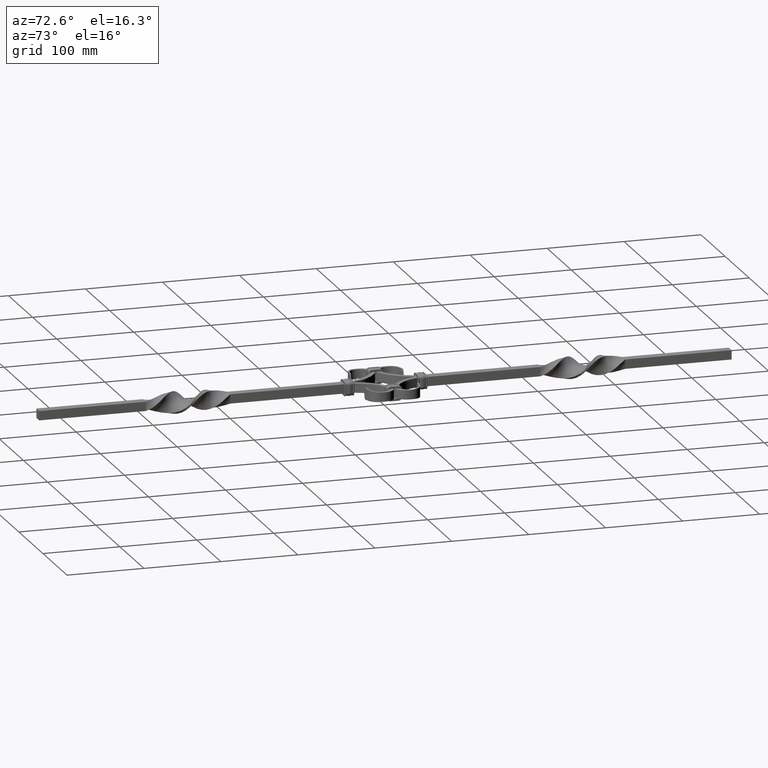
[diagram: clean part render]
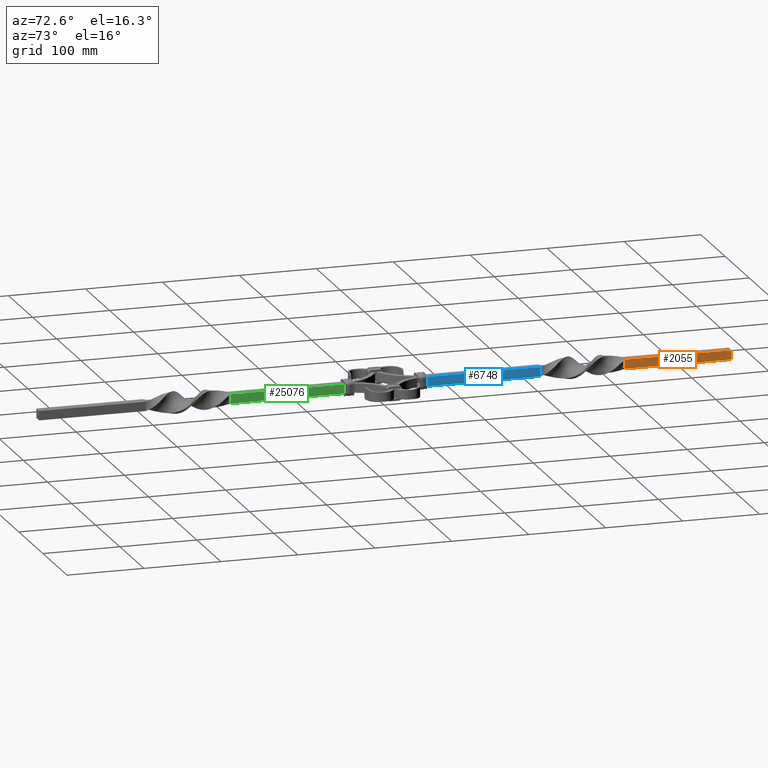
[diagram: same view with three faces highlighted in distinct colors, each labeled with its STEP entity id]
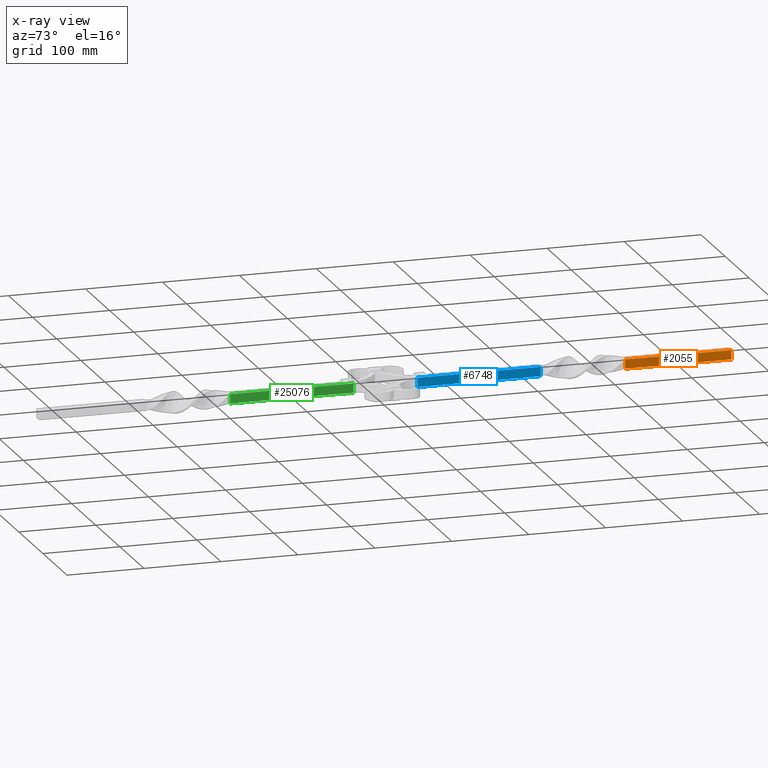
[diagram: x-ray of the same camera — body ghosted, the three highlighted faces saturated]
A machine part, auxiliary view with three faces highlighted in distinct colors.
The next image is the same camera in x-ray (body ghosted, the three faces saturated) — at least one of them is partly hidden behind the body in this view.
Their STEP definitions:

[orange] entity #2055 — the highlighted planar face has unit normal (-1, -0, -0).
#732 = CARTESIAN_POINT ( 'NONE',  ( 6.000005487826232553, 311.4999990848870652, -6.000000044713664771 ) ) ;
#2055 = ADVANCED_FACE ( 'NONE', ( #8382 ), #17040, .F. ) ;
#3253 = CARTESIAN_POINT ( 'NONE',  ( 5.999999833333287569, 450.0000000000000000, 6.000000000000042633 ) ) ;
#4247 = VERTEX_POINT ( 'NONE', #15202 ) ;
#4658 = CARTESIAN_POINT ( 'NONE',  ( 6.000000000000032863, 357.6666666666667425, -5.999999999999959144 ) ) ;
#5088 = DIRECTION ( 'NONE',  ( -6.910682532853900011E-15, 4.456787267672554756E-18, 1.000000000000000000 ) ) ;
#6772 = ORIENTED_EDGE ( 'NONE', *, *, #19704, .T. ) ;
#6931 = EDGE_CURVE ( 'NONE', #4247, #20559, #7287, .T. ) ;
#7287 = B_SPLINE_CURVE_WITH_KNOTS ( 'NONE', 3,
 ( #732, #12674, #7535, #29842 ),
 .UNSPECIFIED., .F., .F.,
 ( 4, 4 ),
 ( 0.000000000000000000, 1.000000000000000000 ),
 .UNSPECIFIED. ) ;
#7535 = CARTESIAN_POINT ( 'NONE',  ( 6.000016619153203834, 311.5000053331276035, 1.999999999977622123 ) ) ;
#7785 = EDGE_CURVE ( 'NONE', #17923, #4247, #20254, .T. ) ;
#8128 = AXIS2_PLACEMENT_3D ( 'NONE', #24447, #19620, #5088 ) ;
#8382 = FACE_OUTER_BOUND ( 'NONE', #12044, .T. ) ;
#9562 = CARTESIAN_POINT ( 'NONE',  ( 6.000000000000035527, 403.8333333333333144, -5.999999999999959144 ) ) ;
#10524 = CARTESIAN_POINT ( 'NONE',  ( 5.999999999999954703, 403.8333333333333144, 6.000000000000042633 ) ) ;
#12044 = EDGE_LOOP ( 'NONE', ( #19800, #15166, #6772, #20833 ) ) ;
#12674 = CARTESIAN_POINT ( 'NONE',  ( 6.000015049598649952, 311.5000019217645786, -2.000000000024727775 ) ) ;
#13416 = CARTESIAN_POINT ( 'NONE',  ( 5.999999999999982236, 450.0000000000000000, 2.000000000000042188 ) ) ;
#13704 = B_SPLINE_CURVE_WITH_KNOTS ( 'NONE', 3,
 ( #18112, #10524, #25183, #15342 ),
 .UNSPECIFIED., .F., .F.,
 ( 4, 4 ),
 ( 0.000000000000000000, 1.000000000000000000 ),
 .UNSPECIFIED. ) ;
#14418 = VERTEX_POINT ( 'NONE', #29564 ) ;
#15166 = ORIENTED_EDGE ( 'NONE', *, *, #26303, .F. ) ;
#15202 = CARTESIAN_POINT ( 'NONE',  ( 6.000005487826232553, 311.4999990848870652, -6.000000044713664771 ) ) ;
#15342 = CARTESIAN_POINT ( 'NONE',  ( 6.000008014367372411, 311.5000041968891651, 5.999999876760604423 ) ) ;
#15571 = CARTESIAN_POINT ( 'NONE',  ( 6.000000000000009770, 450.0000000000000000, -1.999999999999958478 ) ) ;
#16649 = CARTESIAN_POINT ( 'NONE',  ( 6.000008014367372411, 311.5000041968891651, 5.999999876760604423 ) ) ;
#17040 = PLANE ( 'NONE',  #8128 ) ;
#17923 = VERTEX_POINT ( 'NONE', #28528 ) ;
#18112 = CARTESIAN_POINT ( 'NONE',  ( 5.999999833333287569, 450.0000000000000000, 6.000000000000042633 ) ) ;
#19620 = DIRECTION ( 'NONE',  ( -1.000000000000000000, -8.591735456650580917E-18, -6.910682532853900011E-15 ) ) ;
#19704 = EDGE_CURVE ( 'NONE', #14418, #20559, #13704, .T. ) ;
#19800 = ORIENTED_EDGE ( 'NONE', *, *, #7785, .F. ) ;
#20254 = B_SPLINE_CURVE_WITH_KNOTS ( 'NONE', 3,
 ( #26598, #9562, #4658, #26704 ),
 .UNSPECIFIED., .F., .F.,
 ( 4, 4 ),
 ( 0.000000000000000000, 1.000000000000000000 ),
 .UNSPECIFIED. ) ;
#20559 = VERTEX_POINT ( 'NONE', #16649 ) ;
#20833 = ORIENTED_EDGE ( 'NONE', *, *, #6931, .F. ) ;
#22367 = B_SPLINE_CURVE_WITH_KNOTS ( 'NONE', 3,
 ( #3253, #13416, #15571, #27789 ),
 .UNSPECIFIED., .F., .F.,
 ( 4, 4 ),
 ( 0.000000000000000000, 1.000000000000000000 ),
 .UNSPECIFIED. ) ;
#24447 = CARTESIAN_POINT ( 'NONE',  ( 5.999999999999954703, 450.0000000000000000, 6.000000000000041744 ) ) ;
#25183 = CARTESIAN_POINT ( 'NONE',  ( 5.999999999999955591, 357.6666666666667425, 6.000000000000043521 ) ) ;
#26303 = EDGE_CURVE ( 'NONE', #14418, #17923, #22367, .T. ) ;
#26598 = CARTESIAN_POINT ( 'NONE',  ( 6.000000000000037303, 450.0000000000000000, -5.999999999999959144 ) ) ;
#26704 = CARTESIAN_POINT ( 'NONE',  ( 6.000005487826232553, 311.4999990848870652, -6.000000044713664771 ) ) ;
#27789 = CARTESIAN_POINT ( 'NONE',  ( 6.000000000000037303, 450.0000000000000000, -5.999999999999959144 ) ) ;
#28528 = CARTESIAN_POINT ( 'NONE',  ( 6.000000000000037303, 450.0000000000000000, -5.999999999999959144 ) ) ;
#29564 = CARTESIAN_POINT ( 'NONE',  ( 5.999999833333287569, 450.0000000000000000, 6.000000000000042633 ) ) ;
#29842 = CARTESIAN_POINT ( 'NONE',  ( 6.000008014367372411, 311.5000041968891651, 5.999999876760604423 ) ) ;

[blue] entity #6748 — the highlighted planar face has unit normal (-1, -0, 0).
#920 = ORIENTED_EDGE ( 'NONE', *, *, #29132, .T. ) ;
#2068 = CARTESIAN_POINT ( 'NONE',  ( 5.999999833333375499, 41.50000000000000000, -5.999999833333378163 ) ) ;
#2479 = CARTESIAN_POINT ( 'NONE',  ( 6.000008015023540864, 201.4999958030901155, -5.999999876801370036 ) ) ;
#2704 = CARTESIAN_POINT ( 'NONE',  ( 5.999999833333375499, 41.50000000000000000, -5.999999833333378163 ) ) ;
#3524 = B_SPLINE_CURVE_WITH_KNOTS ( 'NONE', 3,
 ( #14304, #26633, #16774, #22132 ),
 .UNSPECIFIED., .F., .F.,
 ( 4, 4 ),
 ( 0.000000000000000000, 1.000000000000000000 ),
 .UNSPECIFIED. ) ;
#5414 = CARTESIAN_POINT ( 'NONE',  ( 6.000000000000022204, 148.1666666666667993, -6.000000000000041744 ) ) ;
#6336 = EDGE_CURVE ( 'NONE', #16716, #17544, #26782, .T. ) ;
#6748 = ADVANCED_FACE ( 'NONE', ( #18184 ), #30265, .F. ) ;
#7240 = AXIS2_PLACEMENT_3D ( 'NONE', #13511, #29686, #22828 ) ;
#7843 = CARTESIAN_POINT ( 'NONE',  ( 5.999999999999989342, 94.83333333333341386, -6.000000000000040856 ) ) ;
#11721 = CARTESIAN_POINT ( 'NONE',  ( 5.999999833333375499, 41.50000000000000000, -5.999999833333378163 ) ) ;
#12678 = ORIENTED_EDGE ( 'NONE', *, *, #6336, .F. ) ;
#13511 = CARTESIAN_POINT ( 'NONE',  ( 6.000000000000039968, 201.5000000000000000, 5.999999999999959144 ) ) ;
#13779 = EDGE_CURVE ( 'NONE', #24350, #18834, #25818, .T. ) ;
#14304 = CARTESIAN_POINT ( 'NONE',  ( 6.000005543560789967, 201.5000009166145105, 6.000000044937220167 ) ) ;
#14725 = EDGE_LOOP ( 'NONE', ( #920, #12678, #16823, #23479 ) ) ;
#16510 = CARTESIAN_POINT ( 'NONE',  ( 5.999999999999985789, 41.50000000000000000, -2.000000000000041744 ) ) ;
#16716 = VERTEX_POINT ( 'NONE', #22929 ) ;
#16774 = CARTESIAN_POINT ( 'NONE',  ( 6.000016619153174524, 201.4999946668820314, -1.999999999977592591 ) ) ;
#16823 = ORIENTED_EDGE ( 'NONE', *, *, #30097, .F. ) ;
#17544 = VERTEX_POINT ( 'NONE', #11721 ) ;
#17632 = CARTESIAN_POINT ( 'NONE',  ( 6.000000000000040856, 148.1666666666667993, 6.000000000000002665 ) ) ;
#18184 = FACE_OUTER_BOUND ( 'NONE', #14725, .T. ) ;
#18834 = VERTEX_POINT ( 'NONE', #27935 ) ;
#20325 = B_SPLINE_CURVE_WITH_KNOTS ( 'NONE', 3,
 ( #23916, #26482, #16510, #2068 ),
 .UNSPECIFIED., .F., .F.,
 ( 4, 4 ),
 ( 0.000000000000000000, 0.9999999583333334385 ),
 .UNSPECIFIED. ) ;
#22132 = CARTESIAN_POINT ( 'NONE',  ( 6.000008015023540864, 201.4999958030901155, -5.999999876801370036 ) ) ;
#22491 = CARTESIAN_POINT ( 'NONE',  ( 6.000000000000040856, 94.83333333333341386, 5.999999999999981348 ) ) ;
#22828 = DIRECTION ( 'NONE',  ( 7.055242822518633410E-15, 4.456787267672614845E-18, 1.000000000000000000 ) ) ;
#22929 = CARTESIAN_POINT ( 'NONE',  ( 6.000008015023540864, 201.4999958030901155, -5.999999876801370036 ) ) ;
#23479 = ORIENTED_EDGE ( 'NONE', *, *, #13779, .T. ) ;
#23802 = CARTESIAN_POINT ( 'NONE',  ( 6.000005543560789967, 201.5000009166145105, 6.000000044937220167 ) ) ;
#23916 = CARTESIAN_POINT ( 'NONE',  ( 5.999999833333292010, 41.50000000000000000, 6.000000000000043521 ) ) ;
#24350 = VERTEX_POINT ( 'NONE', #23802 ) ;
#24702 = CARTESIAN_POINT ( 'NONE',  ( 6.000005543560789967, 201.5000009166145105, 6.000000044937220167 ) ) ;
#25818 = B_SPLINE_CURVE_WITH_KNOTS ( 'NONE', 3,
 ( #24702, #17632, #22491, #29563 ),
 .UNSPECIFIED., .F., .F.,
 ( 4, 4 ),
 ( 0.000000000000000000, 1.000000000000000000 ),
 .UNSPECIFIED. ) ;
#26482 = CARTESIAN_POINT ( 'NONE',  ( 6.000000000000013323, 41.50000000000000000, 1.999999999999958922 ) ) ;
#26633 = CARTESIAN_POINT ( 'NONE',  ( 6.000015049598807160, 201.4999980782269517, 2.000000000025026203 ) ) ;
#26782 = B_SPLINE_CURVE_WITH_KNOTS ( 'NONE', 3,
 ( #2479, #5414, #7843, #2704 ),
 .UNSPECIFIED., .F., .F.,
 ( 4, 4 ),
 ( 0.000000000000000000, 1.000000000000000000 ),
 .UNSPECIFIED. ) ;
#27935 = CARTESIAN_POINT ( 'NONE',  ( 5.999999833333292010, 41.50000000000000000, 6.000000000000043521 ) ) ;
#29132 = EDGE_CURVE ( 'NONE', #18834, #17544, #20325, .T. ) ;
#29563 = CARTESIAN_POINT ( 'NONE',  ( 5.999999833333292010, 41.50000000000000000, 6.000000000000043521 ) ) ;
#29686 = DIRECTION ( 'NONE',  ( -1.000000000000000000, -8.591735456650550102E-18, 7.055242822518633410E-15 ) ) ;
#30097 = EDGE_CURVE ( 'NONE', #24350, #16716, #3524, .T. ) ;
#30265 = PLANE ( 'NONE',  #7240 ) ;

[green] entity #25076 — the highlighted planar face has unit normal (-1, -0, -0).
#458 = EDGE_CURVE ( 'NONE', #28253, #25544, #3382, .T. ) ;
#1900 = CARTESIAN_POINT ( 'NONE',  ( 5.999999833333287569, -63.00000000000000000, 6.000000000000042633 ) ) ;
#2196 = CARTESIAN_POINT ( 'NONE',  ( 6.000000000000032863, -155.3333333333332575, -5.999999999999959144 ) ) ;
#2542 = DIRECTION ( 'NONE',  ( 8.591735456650550102E-18, -1.000000000000000000, 4.456787267672614845E-18 ) ) ;
#3382 = B_SPLINE_CURVE_WITH_KNOTS ( 'NONE', 3,
 ( #12169, #16870, #29320, #4371 ),
 .UNSPECIFIED., .F., .F.,
 ( 4, 4 ),
 ( 0.000000000000000000, 1.000000000000000000 ),
 .UNSPECIFIED. ) ;
#3676 = EDGE_CURVE ( 'NONE', #30961, #28253, #11812, .T. ) ;
#4371 = CARTESIAN_POINT ( 'NONE',  ( 6.000008014367372411, -201.4999958031108349, 5.999999876760604423 ) ) ;
#4527 = VECTOR ( 'NONE', #6479, 1000.000000000000114 ) ;
#4647 = CARTESIAN_POINT ( 'NONE',  ( 5.999999833333287569, -63.00000000000000000, 6.000000000000042633 ) ) ;
#5081 = DIRECTION ( 'NONE',  ( -6.910682532853900011E-15, 4.456787267672554756E-18, 1.000000000000000000 ) ) ;
#5089 = CARTESIAN_POINT ( 'NONE',  ( 6.000005487826232553, -201.5000009151129348, -6.000000044713664771 ) ) ;
#6216 = CARTESIAN_POINT ( 'NONE',  ( 6.000008014367372411, -201.4999958031108349, 5.999999876760604423 ) ) ;
#6278 = EDGE_CURVE ( 'NONE', #29982, #25544, #24121, .T. ) ;
#6479 = DIRECTION ( 'NONE',  ( 1.388889582047229105E-08, 0.000000000000000000, -0.9999999999999998890 ) ) ;
#6599 = LINE ( 'NONE', #12616, #10823 ) ;
#7360 = ORIENTED_EDGE ( 'NONE', *, *, #14344, .F. ) ;
#8381 = DIRECTION ( 'NONE',  ( 8.591735456650550102E-18, -1.000000000000000000, 4.456787267672614845E-18 ) ) ;
#9041 = EDGE_LOOP ( 'NONE', ( #30236, #7360, #30850, #30289, #19591, #13847 ) ) ;
#9764 = CARTESIAN_POINT ( 'NONE',  ( 6.000000000000037303, -63.00000000000000000, -5.999999999999959144 ) ) ;
#9853 = CARTESIAN_POINT ( 'NONE',  ( 5.999999999999954703, -109.1666666666666856, 6.000000000000042633 ) ) ;
#10031 = CARTESIAN_POINT ( 'NONE',  ( 6.000005487826232553, -201.5000009151129348, -6.000000044713664771 ) ) ;
#10823 = VECTOR ( 'NONE', #2542, 1000.000000000000000 ) ;
#11190 = CARTESIAN_POINT ( 'NONE',  ( 5.999999833333287569, -41.50000000000000000, 6.000000000000042633 ) ) ;
#11812 = B_SPLINE_CURVE_WITH_KNOTS ( 'NONE', 3,
 ( #9764, #19304, #2196, #5089 ),
 .UNSPECIFIED., .F., .F.,
 ( 4, 4 ),
 ( 0.000000000000000000, 1.000000000000000000 ),
 .UNSPECIFIED. ) ;
#12127 = CARTESIAN_POINT ( 'NONE',  ( 5.999999999999955591, -155.3333333333332575, 6.000000000000043521 ) ) ;
#12169 = CARTESIAN_POINT ( 'NONE',  ( 6.000005487826232553, -201.5000009151129348, -6.000000044713664771 ) ) ;
#12616 = CARTESIAN_POINT ( 'NONE',  ( 6.000000000000037303, -24.52943725152274013, -5.999999999999959144 ) ) ;
#13847 = ORIENTED_EDGE ( 'NONE', *, *, #458, .F. ) ;
#14344 = EDGE_CURVE ( 'NONE', #31270, #30961, #6599, .T. ) ;
#16504 = AXIS2_PLACEMENT_3D ( 'NONE', #17033, #16512, #5081 ) ;
#16512 = DIRECTION ( 'NONE',  ( -1.000000000000000000, -8.591735456650580917E-18, -6.910682532853900011E-15 ) ) ;
#16870 = CARTESIAN_POINT ( 'NONE',  ( 6.000015049598649952, -201.4999980782354214, -2.000000000024727775 ) ) ;
#17033 = CARTESIAN_POINT ( 'NONE',  ( 5.999999999999954703, -63.00000000000000000, 6.000000000000041744 ) ) ;
#18738 = FACE_OUTER_BOUND ( 'NONE', #9041, .T. ) ;
#19073 = LINE ( 'NONE', #11190, #4527 ) ;
#19304 = CARTESIAN_POINT ( 'NONE',  ( 6.000000000000035527, -109.1666666666666856, -5.999999999999959144 ) ) ;
#19494 = CARTESIAN_POINT ( 'NONE',  ( 6.000008014367372411, -201.4999958031108349, 5.999999876760604423 ) ) ;
#19591 = ORIENTED_EDGE ( 'NONE', *, *, #6278, .T. ) ;
#19799 = EDGE_CURVE ( 'NONE', #26194, #29982, #27374, .T. ) ;
#21536 = CARTESIAN_POINT ( 'NONE',  ( 6.000000000000037303, -63.00000000000000000, -5.999999999999959144 ) ) ;
#23075 = CARTESIAN_POINT ( 'NONE',  ( 5.999999833333287569, -24.52943725152274013, 6.000000000000042633 ) ) ;
#23919 = PLANE ( 'NONE',  #16504 ) ;
#24121 = B_SPLINE_CURVE_WITH_KNOTS ( 'NONE', 3,
 ( #4647, #9853, #12127, #19494 ),
 .UNSPECIFIED., .F., .F.,
 ( 4, 4 ),
 ( 0.000000000000000000, 1.000000000000000000 ),
 .UNSPECIFIED. ) ;
#24966 = CARTESIAN_POINT ( 'NONE',  ( 5.999999833333287569, -41.50000000000000000, 6.000000000000042633 ) ) ;
#25076 = ADVANCED_FACE ( 'NONE', ( #18738 ), #23919, .F. ) ;
#25244 = CARTESIAN_POINT ( 'NONE',  ( 5.999999833333375499, -41.50000000000000000, -5.999999833333378163 ) ) ;
#25481 = VECTOR ( 'NONE', #8381, 1000.000000000000000 ) ;
#25544 = VERTEX_POINT ( 'NONE', #6216 ) ;
#26194 = VERTEX_POINT ( 'NONE', #24966 ) ;
#27374 = LINE ( 'NONE', #23075, #25481 ) ;
#28253 = VERTEX_POINT ( 'NONE', #10031 ) ;
#29320 = CARTESIAN_POINT ( 'NONE',  ( 6.000016619153203834, -201.4999946668723680, 1.999999999977622123 ) ) ;
#29982 = VERTEX_POINT ( 'NONE', #1900 ) ;
#30236 = ORIENTED_EDGE ( 'NONE', *, *, #3676, .F. ) ;
#30289 = ORIENTED_EDGE ( 'NONE', *, *, #19799, .T. ) ;
#30468 = EDGE_CURVE ( 'NONE', #26194, #31270, #19073, .T. ) ;
#30850 = ORIENTED_EDGE ( 'NONE', *, *, #30468, .F. ) ;
#30961 = VERTEX_POINT ( 'NONE', #21536 ) ;
#31270 = VERTEX_POINT ( 'NONE', #25244 ) ;